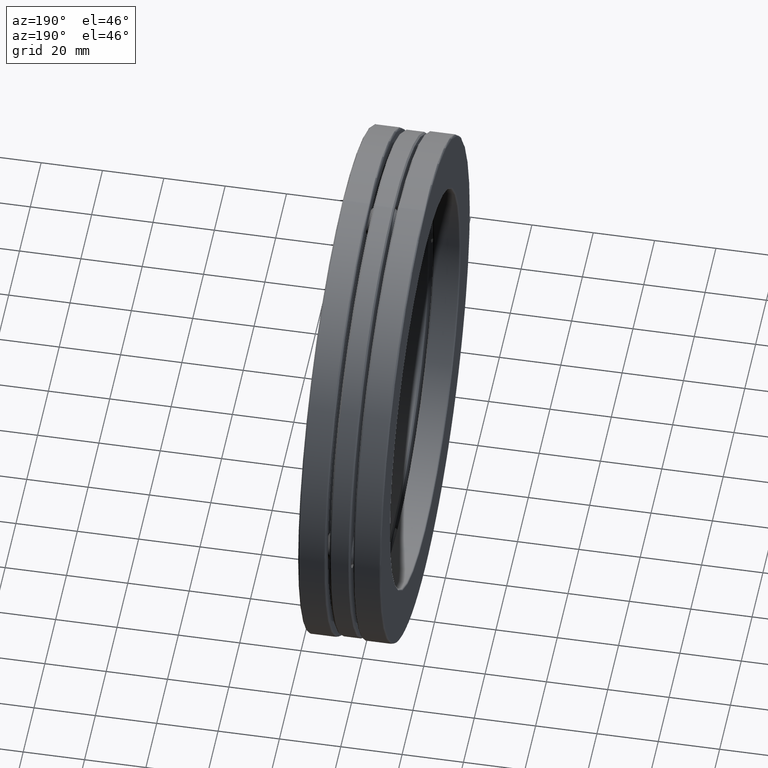
[diagram: clean part render]
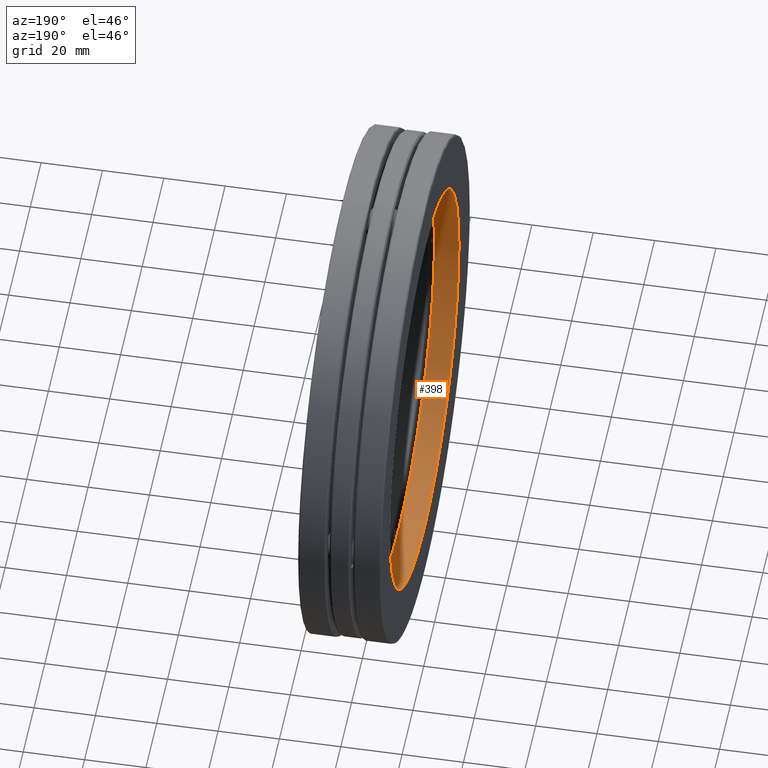
[diagram: same view with one face highlighted and labeled with its STEP entity id]
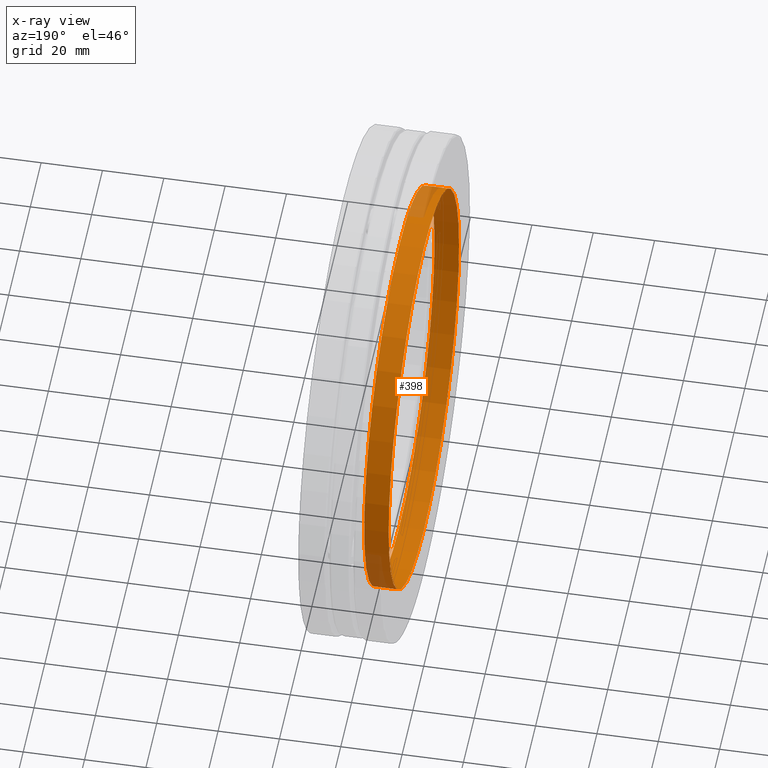
[diagram: x-ray of the same camera — body ghosted, the highlighted face saturated]
A machine part, auxiliary view. The second image highlights one B-rep face of the part: STEP entity #398.
The next image is the same camera in x-ray: the body ghosted, the highlighted face saturated — about 6% of this face is hidden behind the body in this view.
In plain terms, the highlighted cylindrical surface (bore or boss wall) has radius 64.9986 mm, axis along (-1, -0, -0).
Its self-contained STEP definition (entity closure, byte-faithful):
#2 = ORIENTED_EDGE ( 'NONE', *, *, #285, .F. ) ;
#10 = ORIENTED_EDGE ( 'NONE', *, *, #251, .T. ) ;
#33 = CARTESIAN_POINT ( 'NONE',  ( -0.1971702099999996800, 0.0000000000000000000, 2.559000000000000200 ) ) ;
#43 = CIRCLE ( 'NONE', #756, 2.558999999999999700 ) ;
#172 = DIRECTION ( 'NONE',  ( -1.000000000000000000, -0.0000000000000000000, -0.0000000000000000000 ) ) ;
#216 = DIRECTION ( 'NONE',  ( 0.0000000000000000000, 0.0000000000000000000, 1.000000000000000000 ) ) ;
#251 = EDGE_CURVE ( 'NONE', #623, #623, #43, .T. ) ;
#279 = FACE_OUTER_BOUND ( 'NONE', #690, .T. ) ;
#285 = EDGE_CURVE ( 'NONE', #770, #770, #639, .T. ) ;
#311 = CARTESIAN_POINT ( 'NONE',  ( 0.0000000000000000000, 0.0000000000000000000, 0.0000000000000000000 ) ) ;
#398 = ADVANCED_FACE ( 'NONE', ( #689, #279 ), #615, .F. ) ;
#429 = AXIS2_PLACEMENT_3D ( 'NONE', #311, #629, #624 ) ;
#491 = CARTESIAN_POINT ( 'NONE',  ( -0.5114999999999999500, 0.0000000000000000000, 2.558999999999999700 ) ) ;
#497 = EDGE_LOOP ( 'NONE', ( #10 ) ) ;
#508 = AXIS2_PLACEMENT_3D ( 'NONE', #801, #172, #613 ) ;
#606 = CARTESIAN_POINT ( 'NONE',  ( -0.5114999999999999500, 0.0000000000000000000, 0.0000000000000000000 ) ) ;
#613 = DIRECTION ( 'NONE',  ( 0.0000000000000000000, 0.0000000000000000000, 1.000000000000000000 ) ) ;
#615 = CYLINDRICAL_SURFACE ( 'NONE', #429, 2.558999999999999700 ) ;
#623 = VERTEX_POINT ( 'NONE', #491 ) ;
#624 = DIRECTION ( 'NONE',  ( 0.0000000000000000000, 0.0000000000000000000, 1.000000000000000000 ) ) ;
#629 = DIRECTION ( 'NONE',  ( -1.000000000000000000, -0.0000000000000000000, -0.0000000000000000000 ) ) ;
#639 = CIRCLE ( 'NONE', #508, 2.559000000000000200 ) ;
#689 = FACE_OUTER_BOUND ( 'NONE', #497, .T. ) ;
#690 = EDGE_LOOP ( 'NONE', ( #2 ) ) ;
#727 = DIRECTION ( 'NONE',  ( -1.000000000000000000, -0.0000000000000000000, -0.0000000000000000000 ) ) ;
#756 = AXIS2_PLACEMENT_3D ( 'NONE', #606, #727, #216 ) ;
#770 = VERTEX_POINT ( 'NONE', #33 ) ;
#801 = CARTESIAN_POINT ( 'NONE',  ( -0.1971702099999996800, 0.0000000000000000000, 0.0000000000000000000 ) ) ;